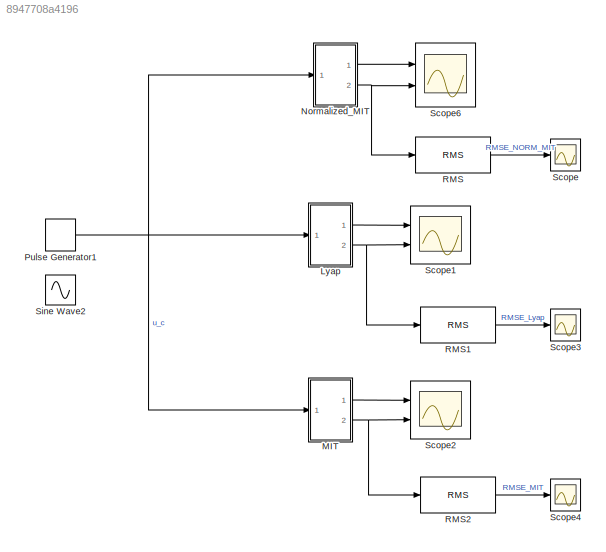
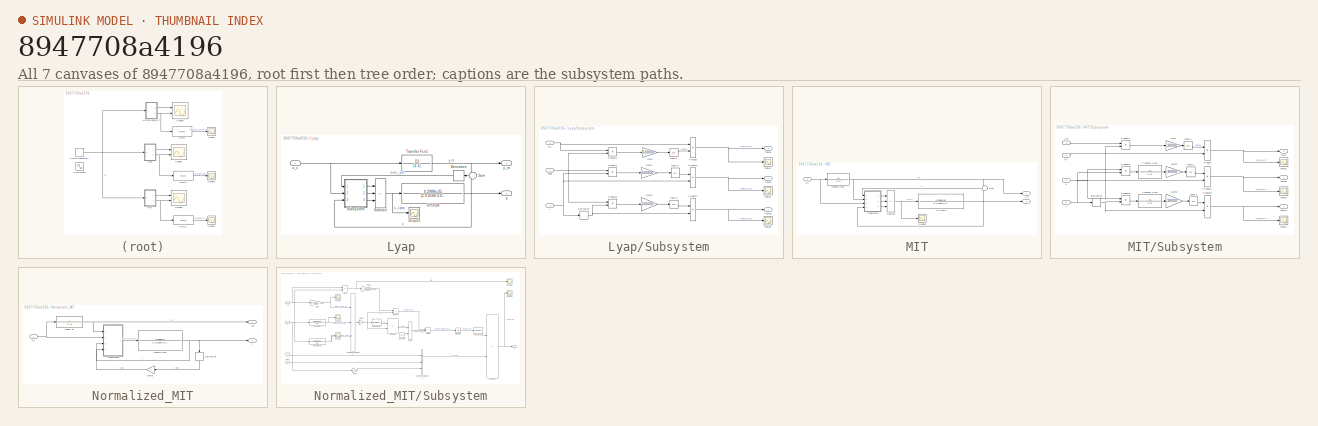
[diagram: thumbnail index - all 7 canvases of the model, root first then tree order]
MODEL slx_8947708a4196
KIND model
CONFIG AbsTol = auto
CONFIG EnableMultiTasking = off
CONFIG FixedStep = auto
CONFIG MaxStep = auto
CONFIG MinStep = auto
CONFIG RelTol = 1e-3
CONFIG SampleTimeConstraint = Unconstrained
CONFIG Solver = VariableStepAuto
CONFIG SolverName = VariableStepAuto
CONFIG StartTime = 0.0
CONFIG StopTime = 1000
BLOCK [SubSystem] Lyap
  Ports = [1, 2]
  RequestExecContextInheritance = off
BLOCK [Derivative] Lyap/Derivative
BLOCK [TransferFcn] Lyap/SYSTEM
  Denominator = [1 0.0166 0.00001]
  Numerator = 0.2988e-05
BLOCK [Scope] Lyap/Scope2
  Floating = off
  NumInputPorts = 1
  Ports = [1]
  ScopeSpecificationString = Simulink.scopes.TimeScopeBlockCfg('CurrentConfiguration', extmgr.ConfigurationSet(extmgr.Configuration('Core','General UI',true),extmgr.Configuration('Core','Source UI',true),extmgr.Configuration('Sources','WiredSimulink',true,'DataLoggingVariableName','ScopeData4'),extmgr.Configuration('Visuals','Time Domain',true,'SerializedDisplays',{struct('MinYLimReal','-299617.80443','MaxYLimReal','278203.56...<+1397ch>
BLOCK [SubSystem] Lyap/Subsystem
  Ports = [3, 3]
  RequestExecContextInheritance = off
BLOCK [Derivative] Lyap/Subsystem/Derivative
BLOCK [Gain] Lyap/Subsystem/Gain
  Gain = -500000
BLOCK [Gain] Lyap/Subsystem/Gain1
  Gain = 500000
BLOCK [Gain] Lyap/Subsystem/Gain2
  Gain = 500000
BLOCK [Product] Lyap/Subsystem/Product
  Ports = [2, 1]
BLOCK [Product] Lyap/Subsystem/Product1
  Ports = [2, 1]
BLOCK [Product] Lyap/Subsystem/Product2
  Ports = [2, 1]
BLOCK [Product] Lyap/Subsystem/Product3
  Ports = [2, 1]
BLOCK [Product] Lyap/Subsystem/Product4
  Ports = [2, 1]
BLOCK [Product] Lyap/Subsystem/Product5
  Ports = [2, 1]
BLOCK [Outport] Lyap/Subsystem/Theta1
  Port = 3
BLOCK [Outport] Lyap/Subsystem/Theta2
  Port = 2
BLOCK [Outport] Lyap/Subsystem/Theta3
BLOCK [Inport] Lyap/Subsystem/edot
BLOCK [Integrator] Lyap/Subsystem/theta 1
  Ports = [1, 1]
BLOCK [Integrator] Lyap/Subsystem/theta 2
  Ports = [1, 1]
BLOCK [Integrator] Lyap/Subsystem/theta 3
  Ports = [1, 1]
BLOCK [Scope] Lyap/Subsystem/theta1
  Floating = off
  NumInputPorts = 1
  Ports = [1]
  ScopeSpecificationString = Simulink.scopes.TimeScopeBlockCfg('CurrentConfiguration', extmgr.ConfigurationSet(extmgr.Configuration('Core','General UI',true),extmgr.Configuration('Core','Source UI',true),extmgr.Configuration('Sources','WiredSimulink',true,'DataLoggingVariableName','ScopeData2'),extmgr.Configuration('Visuals','Time Domain',true,'SerializedDisplays',{struct('MinYLimReal','-124045.69004','MaxYLimReal','277450.45...<+1460ch>
BLOCK [Scope] Lyap/Subsystem/theta2
  Floating = off
  NumInputPorts = 1
  Ports = [1]
  ScopeSpecificationString = Simulink.scopes.TimeScopeBlockCfg('CurrentConfiguration', extmgr.ConfigurationSet(extmgr.Configuration('Core','General UI',true),extmgr.Configuration('Core','Source UI',true),extmgr.Configuration('Sources','WiredSimulink',true,'DataLoggingVariableName','ScopeData4'),extmgr.Configuration('Visuals','Time Domain',true,'SerializedDisplays',{struct('MinYLimReal','-53452.32499','MaxYLimReal','250951.313...<+1451ch>
BLOCK [Scope] Lyap/Subsystem/theta3
  Floating = off
  NumInputPorts = 1
  Ports = [1]
  ScopeSpecificationString = Simulink.scopes.TimeScopeBlockCfg('CurrentConfiguration', extmgr.ConfigurationSet(extmgr.Configuration('Core','General UI',true),extmgr.Configuration('Core','Source UI',true),extmgr.Configuration('Sources','WiredSimulink',true,'DataLoggingVariableName','ScopeData5'),extmgr.Configuration('Visuals','Time Domain',true,'SerializedDisplays',{struct('MinYLimReal','-388321.94857','MaxYLimReal','462713.20...<+1455ch>
BLOCK [Inport] Lyap/Subsystem/u_c
  Port = 2
BLOCK [Inport] Lyap/Subsystem/y
  Port = 3
BLOCK [Sum] Lyap/Subtract
  IconShape = rectangular
  Inputs = --+
  Ports = [3, 1]
BLOCK [Sum] Lyap/Sum
  Inputs = -|+
  Ports = [2, 1]
BLOCK [TransferFcn] Lyap/Transfer Fcn1
BLOCK [Inport] Lyap/u_c
BLOCK [Outport] Lyap/y
  Port = 2
BLOCK [Outport] Lyap/y_m
BLOCK [SubSystem] MIT
  Ports = [1, 2]
  RequestExecContextInheritance = off
BLOCK [TransferFcn] MIT/SYSTEM
  Denominator = [1 0.0166 0.00001]
  Numerator = 0.2988e-05
BLOCK [Scope] MIT/Scope3
  Floating = off
  NumInputPorts = 1
  Ports = [1]
  ScopeSpecificationString = Simulink.scopes.TimeScopeBlockCfg('CurrentConfiguration', extmgr.ConfigurationSet(extmgr.Configuration('Core','General UI',true),extmgr.Configuration('Core','Source UI',true),extmgr.Configuration('Sources','WiredSimulink',true,'DataLoggingVariableName','ScopeData6'),extmgr.Configuration('Visuals','Time Domain',true,'SerializedDisplays',{struct('MinYLimReal','-2639063.16541','MaxYLimReal','2611815....<+1406ch>
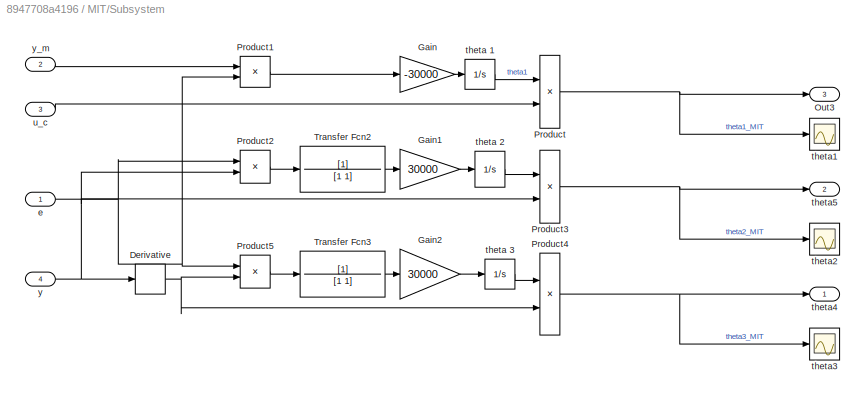
BLOCK [SubSystem] MIT/Subsystem
  Ports = [4, 3]
  RequestExecContextInheritance = off
BLOCK [Derivative] MIT/Subsystem/Derivative
BLOCK [Gain] MIT/Subsystem/Gain
  Gain = -30000
BLOCK [Gain] MIT/Subsystem/Gain1
  Gain = 30000
BLOCK [Gain] MIT/Subsystem/Gain2
  Gain = 30000
BLOCK [Outport] MIT/Subsystem/Out3
  Port = 3
BLOCK [Product] MIT/Subsystem/Product
  Ports = [2, 1]
BLOCK [Product] MIT/Subsystem/Product1
  Ports = [2, 1]
BLOCK [Product] MIT/Subsystem/Product2
  Ports = [2, 1]
BLOCK [Product] MIT/Subsystem/Product3
  Ports = [2, 1]
BLOCK [Product] MIT/Subsystem/Product4
  Ports = [2, 1]
BLOCK [Product] MIT/Subsystem/Product5
  Ports = [2, 1]
BLOCK [TransferFcn] MIT/Subsystem/Transfer Fcn2
BLOCK [TransferFcn] MIT/Subsystem/Transfer Fcn3
BLOCK [Inport] MIT/Subsystem/e
BLOCK [Integrator] MIT/Subsystem/theta 1
  Ports = [1, 1]
BLOCK [Integrator] MIT/Subsystem/theta 2
  Ports = [1, 1]
BLOCK [Integrator] MIT/Subsystem/theta 3
  Ports = [1, 1]
BLOCK [Scope] MIT/Subsystem/theta1
  Floating = off
  NumInputPorts = 1
  Ports = [1]
  ScopeSpecificationString = Simulink.scopes.TimeScopeBlockCfg('CurrentConfiguration', extmgr.ConfigurationSet(extmgr.Configuration('Core','General UI',true),extmgr.Configuration('Core','Source UI',true),extmgr.Configuration('Sources','WiredSimulink',true,'DataLoggingVariableName','ScopeData2'),extmgr.Configuration('Visuals','Time Domain',true,'SerializedDisplays',{struct('MinYLimReal','-3784.15867','MaxYLimReal','24561.62296...<+1443ch>
BLOCK [Scope] MIT/Subsystem/theta2
  Floating = off
  NumInputPorts = 1
  Ports = [1]
  ScopeSpecificationString = Simulink.scopes.TimeScopeBlockCfg('CurrentConfiguration', extmgr.ConfigurationSet(extmgr.Configuration('Core','General UI',true),extmgr.Configuration('Core','Source UI',true),extmgr.Configuration('Sources','WiredSimulink',true,'DataLoggingVariableName','ScopeData4'),extmgr.Configuration('Visuals','Time Domain',true,'SerializedDisplays',{struct('MinYLimReal','-4284.54058','MaxYLimReal','4024.49488'...<+1441ch>
BLOCK [Scope] MIT/Subsystem/theta3
  Floating = off
  NumInputPorts = 1
  Ports = [1]
  ScopeSpecificationString = Simulink.scopes.TimeScopeBlockCfg('CurrentConfiguration', extmgr.ConfigurationSet(extmgr.Configuration('Core','General UI',true),extmgr.Configuration('Core','Source UI',true),extmgr.Configuration('Sources','WiredSimulink',true,'DataLoggingVariableName','ScopeData5'),extmgr.Configuration('Visuals','Time Domain',true,'SerializedDisplays',{struct('MinYLimReal','-388321.94857','MaxYLimReal','462713.20...<+1455ch>
BLOCK [Outport] MIT/Subsystem/theta4
BLOCK [Outport] MIT/Subsystem/theta5
  Port = 2
BLOCK [Inport] MIT/Subsystem/u_c
  Port = 3
BLOCK [Inport] MIT/Subsystem/y
  Port = 4
BLOCK [Inport] MIT/Subsystem/y_m
  Port = 2
BLOCK [Sum] MIT/Subtract
  IconShape = rectangular
  Inputs = --+
  Ports = [3, 1]
BLOCK [Sum] MIT/Sum
  Inputs = -|+
  Ports = [2, 1]
BLOCK [TransferFcn] MIT/Transfer Fcn1
BLOCK [Inport] MIT/u_c
BLOCK [Outport] MIT/y
  Port = 2
BLOCK [Outport] MIT/y_m
BLOCK [SubSystem] Normalized_MIT
  Ports = [1, 2]
  RequestExecContextInheritance = off
BLOCK [Derivative] Normalized_MIT/Derivative
BLOCK [Gain] Normalized_MIT/Gain2
  Gain = -1
BLOCK [TransferFcn] Normalized_MIT/Model TF
  Numerator = 1
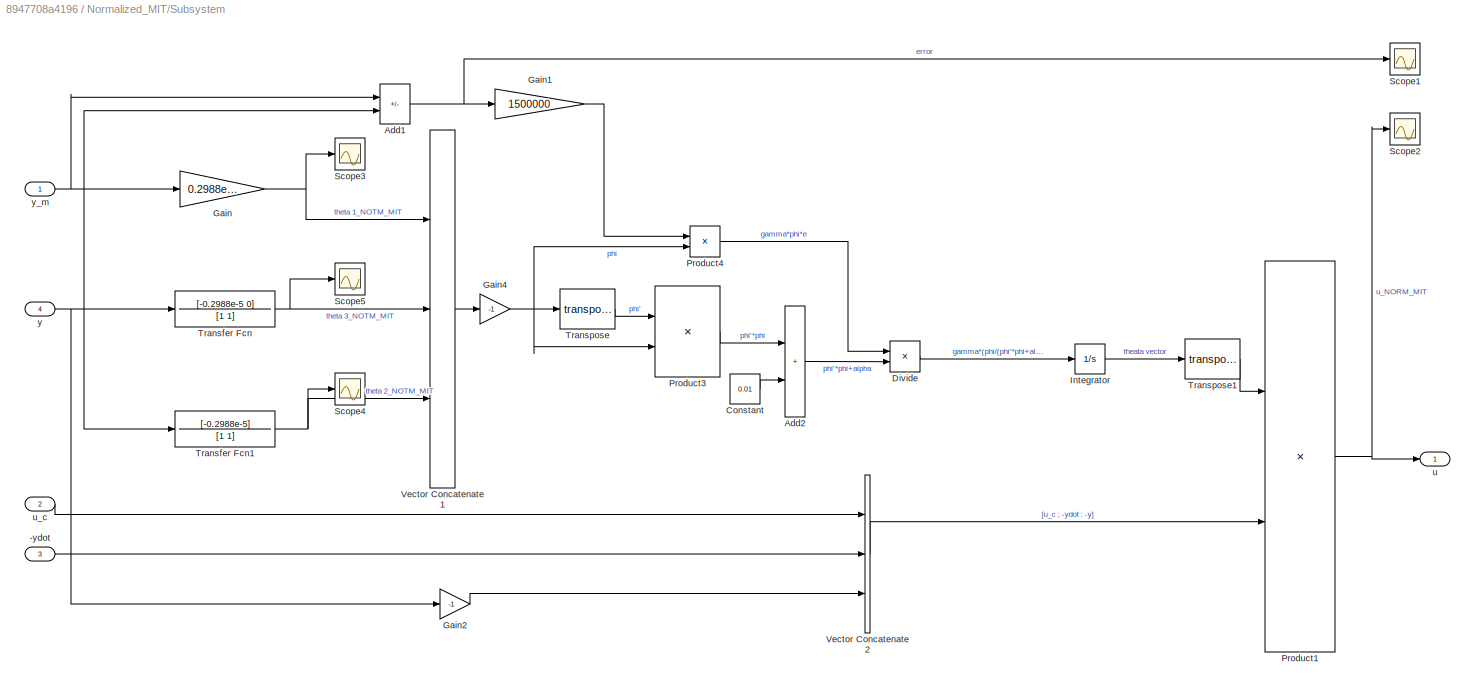
BLOCK [SubSystem] Normalized_MIT/Subsystem
  Ports = [4, 1]
  RequestExecContextInheritance = off
BLOCK [Inport] Normalized_MIT/Subsystem/-ydot
  Port = 3
BLOCK [Sum] Normalized_MIT/Subsystem/Add1
  IconShape = rectangular
  Inputs = -+
  Ports = [2, 1]
BLOCK [Sum] Normalized_MIT/Subsystem/Add2
  IconShape = rectangular
  Ports = [2, 1]
BLOCK [Constant] Normalized_MIT/Subsystem/Constant
  Value = 0.01
BLOCK [Product] Normalized_MIT/Subsystem/Divide
  Inputs = */
  Ports = [2, 1]
BLOCK [Gain] Normalized_MIT/Subsystem/Gain
  Gain = 0.2988e-5
BLOCK [Gain] Normalized_MIT/Subsystem/Gain1
  Gain = 1500000
BLOCK [Gain] Normalized_MIT/Subsystem/Gain2
  Gain = -1
BLOCK [Gain] Normalized_MIT/Subsystem/Gain4
  Gain = -1
BLOCK [Integrator] Normalized_MIT/Subsystem/Integrator
  Ports = [1, 1]
BLOCK [Product] Normalized_MIT/Subsystem/Product1
  Multiplication = Matrix(*)
  Ports = [2, 1]
BLOCK [Product] Normalized_MIT/Subsystem/Product3
  Multiplication = Matrix(*)
  Ports = [2, 1]
BLOCK [Product] Normalized_MIT/Subsystem/Product4
  Ports = [2, 1]
BLOCK [Scope] Normalized_MIT/Subsystem/Scope1
  Floating = off
  NumInputPorts = 1
  Ports = [1]
  ScopeSpecificationString = Simulink.scopes.TimeScopeBlockCfg('CurrentConfiguration', extmgr.ConfigurationSet(extmgr.Configuration('Core','General UI',true),extmgr.Configuration('Core','Source UI',true),extmgr.Configuration('Sources','WiredSimulink',true,'DataLoggingVariableName','ScopeData1','DataLoggingSaveFormat','StructureWithTime','DataLoggingLimitDataPoints',true,'DataLoggingDecimation','1','DataLoggingDecimateData',tr...<+1725ch>
BLOCK [Scope] Normalized_MIT/Subsystem/Scope2
  Floating = off
  NumInputPorts = 1
  Ports = [1]
  ScopeSpecificationString = Simulink.scopes.TimeScopeBlockCfg('CurrentConfiguration', extmgr.ConfigurationSet(extmgr.Configuration('Core','General UI',true),extmgr.Configuration('Core','Source UI',true),extmgr.Configuration('Sources','WiredSimulink',true,'DataLogging',true,'DataLoggingVariableName','ContSig','DataLoggingSaveFormat','StructureWithTime','DataLoggingDecimation','1','DataLoggingDecimateData',true),extmgr.Configu...<+938ch>
BLOCK [Scope] Normalized_MIT/Subsystem/Scope3
  Floating = off
  NumInputPorts = 1
  Ports = [1]
  ScopeSpecificationString = Simulink.scopes.TimeScopeBlockCfg('CurrentConfiguration', extmgr.ConfigurationSet(extmgr.Configuration('Core','General UI',true),extmgr.Configuration('Core','Source UI',true),extmgr.Configuration('Sources','WiredSimulink',true,'DataLogging',true,'DataLoggingVariableName','f','DataLoggingSaveFormat','StructureWithTime','DataLoggingDecimation','1','DataLoggingDecimateData',true),extmgr.Configuration...<+932ch>
BLOCK [Scope] Normalized_MIT/Subsystem/Scope4
  Floating = off
  NumInputPorts = 1
  Ports = [1]
  ScopeSpecificationString = Simulink.scopes.TimeScopeBlockCfg('CurrentConfiguration', extmgr.ConfigurationSet(extmgr.Configuration('Core','General UI',true),extmgr.Configuration('Core','Source UI',true),extmgr.Configuration('Sources','WiredSimulink',true,'DataLogging',true,'DataLoggingVariableName','q1','DataLoggingSaveFormat','StructureWithTime','DataLoggingDecimation','1','DataLoggingDecimateData',true),extmgr.Configuratio...<+933ch>
BLOCK [Scope] Normalized_MIT/Subsystem/Scope5
  Floating = off
  NumInputPorts = 1
  Ports = [1]
  ScopeSpecificationString = Simulink.scopes.TimeScopeBlockCfg('CurrentConfiguration', extmgr.ConfigurationSet(extmgr.Configuration('Core','General UI',true),extmgr.Configuration('Core','Source UI',true),extmgr.Configuration('Sources','WiredSimulink',true,'DataLogging',true,'DataLoggingVariableName','q0','DataLoggingSaveFormat','StructureWithTime','DataLoggingDecimation','1','DataLoggingDecimateData',true),extmgr.Configuratio...<+933ch>
BLOCK [TransferFcn] Normalized_MIT/Subsystem/Transfer Fcn
  Numerator = [-0.2988e-5 0]
BLOCK [TransferFcn] Normalized_MIT/Subsystem/Transfer Fcn1
  Numerator = [-0.2988e-5]
BLOCK [Math] Normalized_MIT/Subsystem/Transpose
  Operator = transpose
  Ports = [1, 1]
BLOCK [Math] Normalized_MIT/Subsystem/Transpose1
  Operator = transpose
  Ports = [1, 1]
BLOCK [Concatenate] Normalized_MIT/Subsystem/Vector Concatenate1
  NumInputs = 3
  Ports = [3, 1]
BLOCK [Concatenate] Normalized_MIT/Subsystem/Vector Concatenate2
  NumInputs = 3
  Ports = [3, 1]
BLOCK [Outport] Normalized_MIT/Subsystem/u
BLOCK [Inport] Normalized_MIT/Subsystem/u_c
  Port = 2
BLOCK [Inport] Normalized_MIT/Subsystem/y
  Port = 4
BLOCK [Inport] Normalized_MIT/Subsystem/y_m
BLOCK [TransferFcn] Normalized_MIT/Transfer Fcn2
  Denominator = [1 0.0166 0.00001]
  Numerator = 0.2988e-5
BLOCK [Inport] Normalized_MIT/u_c
BLOCK [Outport] Normalized_MIT/y
  Port = 2
BLOCK [Outport] Normalized_MIT/y_m
BLOCK [DiscretePulseGenerator] Pulse Generator1
  Amplitude = 10
  Period = 200
  Ports = [0, 1]
  PulseType = Time based
  PulseWidth = 50
BLOCK [Reference] RMS  REF=dspstat3/RMS
  Ports = [1, 1]
  SourceBlock = dspstat3/RMS
  SourceProductBaseCode = DS
  SourceType = RMS
  UserDataPersistent = on
BLOCK [Reference] RMS1  REF=dspstat3/RMS
  Ports = [1, 1]
  SourceBlock = dspstat3/RMS
  SourceProductBaseCode = DS
  SourceType = RMS
  UserDataPersistent = on
BLOCK [Reference] RMS2  REF=dspstat3/RMS
  Ports = [1, 1]
  SourceBlock = dspstat3/RMS
  SourceProductBaseCode = DS
  SourceType = RMS
  UserDataPersistent = on
BLOCK [Scope] Scope
  Floating = off
  NumInputPorts = 1
  Ports = [1]
  ScopeSpecificationString = Simulink.scopes.TimeScopeBlockCfg('CurrentConfiguration', extmgr.ConfigurationSet(extmgr.Configuration('Core','General UI',true),extmgr.Configuration('Core','Source UI',true),extmgr.Configuration('Sources','WiredSimulink',true,'DataLoggingVariableName','ScopeData1'),extmgr.Configuration('Visuals','Time Domain',true,'SerializedDisplays',{struct('MinYLimReal','-3.78893','MaxYLimReal','34.10037','YLa...<+1366ch>
BLOCK [Scope] Scope1
  Floating = off
  NumInputPorts = 2
  Ports = [2]
  ScopeSpecificationString = Simulink.scopes.TimeScopeBlockCfg('CurrentConfiguration', extmgr.ConfigurationSet(extmgr.Configuration('Core','General UI',true),extmgr.Configuration('Core','Source UI',true),extmgr.Configuration('Sources','WiredSimulink',true,'DataLoggingVariableName','ScopeData3'),extmgr.Configuration('Visuals','Time Domain',true,'SerializedDisplays',{struct('MinYLimReal','-12.49875','MaxYLimReal','12.49875','YL...<+1453ch>
BLOCK [Scope] Scope2
  Floating = off
  NumInputPorts = 2
  Ports = [2]
  ScopeSpecificationString = Simulink.scopes.TimeScopeBlockCfg('CurrentConfiguration', extmgr.ConfigurationSet(extmgr.Configuration('Core','General UI',true),extmgr.Configuration('Core','Source UI',true),extmgr.Configuration('Sources','WiredSimulink',true,'DataLoggingVariableName','ScopeData5'),extmgr.Configuration('Visuals','Time Domain',true,'SerializedDisplays',{struct('MinYLimReal','-379.82824','MaxYLimReal','434.86681','...<+1454ch>
BLOCK [Scope] Scope3
  Floating = off
  NumInputPorts = 1
  Ports = [1]
  ScopeSpecificationString = Simulink.scopes.TimeScopeBlockCfg('CurrentConfiguration', extmgr.ConfigurationSet(extmgr.Configuration('Core','General UI',true),extmgr.Configuration('Core','Source UI',true),extmgr.Configuration('Sources','WiredSimulink',true,'DataLoggingVariableName','ScopeData7'),extmgr.Configuration('Visuals','Time Domain',true,'SerializedDisplays',{struct('MinYLimReal','-3.78893','MaxYLimReal','34.10037','YLa...<+1366ch>
BLOCK [Scope] Scope4
  Floating = off
  NumInputPorts = 1
  Ports = [1]
  ScopeSpecificationString = Simulink.scopes.TimeScopeBlockCfg('CurrentConfiguration', extmgr.ConfigurationSet(extmgr.Configuration('Core','General UI',true),extmgr.Configuration('Core','Source UI',true),extmgr.Configuration('Sources','WiredSimulink',true,'DataLoggingVariableName','ScopeData8'),extmgr.Configuration('Visuals','Time Domain',true,'SerializedDisplays',{struct('MinYLimReal','-3.78893','MaxYLimReal','34.10037','YLa...<+1366ch>
BLOCK [Scope] Scope6
  Floating = off
  NumInputPorts = 2
  Ports = [2]
  ScopeSpecificationString = Simulink.scopes.TimeScopeBlockCfg('CurrentConfiguration', extmgr.ConfigurationSet(extmgr.Configuration('Core','General UI',true),extmgr.Configuration('Core','Source UI',true),extmgr.Configuration('Sources','WiredSimulink',true,'DataLoggingVariableName','ScopeData2'),extmgr.Configuration('Visuals','Time Domain',true,'SerializedDisplays',{struct('MinYLimReal','-31.43841','MaxYLimReal','167.96198','Y...<+1429ch>
BLOCK [Sin] Sine Wave2
  Amplitude = 10
  Frequency = 0.01
  Ports = [0, 1]
  SampleTime = 0
LINE Lyap/Derivative:1 -> Lyap/Subsystem:1
NET Lyap/SYSTEM:1 -> Lyap/Subsystem:3, Lyap/Sum:2, Lyap/y:1
NET Lyap/Subsystem/Derivative:1 -> Lyap/Subsystem/Product4:2, Lyap/Subsystem/Product5:2
LINE Lyap/Subsystem/Gain1:1 -> Lyap/Subsystem/theta 2:1
LINE Lyap/Subsystem/Gain2:1 -> Lyap/Subsystem/theta 3:1
LINE Lyap/Subsystem/Gain:1 -> Lyap/Subsystem/theta 1:1
LINE Lyap/Subsystem/Product1:1 -> Lyap/Subsystem/Gain:1
LINE Lyap/Subsystem/Product2:1 -> Lyap/Subsystem/Gain1:1
NET Lyap/Subsystem/Product3:1 -> Lyap/Subsystem/Theta2:1, Lyap/Subsystem/theta2:1
NET Lyap/Subsystem/Product4:1 -> Lyap/Subsystem/Theta3:1, Lyap/Subsystem/theta3:1
LINE Lyap/Subsystem/Product5:1 -> Lyap/Subsystem/Gain2:1
NET Lyap/Subsystem/Product:1 -> Lyap/Subsystem/Theta1:1, Lyap/Subsystem/theta1:1
NET Lyap/Subsystem/edot:1 -> Lyap/Subsystem/Product1:2, Lyap/Subsystem/Product2:1, Lyap/Subsystem/Product5:1
LINE Lyap/Subsystem/theta 1:1 -> Lyap/Subsystem/Product:2
LINE Lyap/Subsystem/theta 2:1 -> Lyap/Subsystem/Product3:1
LINE Lyap/Subsystem/theta 3:1 -> Lyap/Subsystem/Product4:1
NET Lyap/Subsystem/u_c:1 -> Lyap/Subsystem/Product1:1, Lyap/Subsystem/Product:1
NET Lyap/Subsystem/y:1 -> Lyap/Subsystem/Derivative:1, Lyap/Subsystem/Product2:2, Lyap/Subsystem/Product3:2
LINE Lyap/Subsystem:1 -> Lyap/Subtract:1
LINE Lyap/Subsystem:2 -> Lyap/Subtract:2
LINE Lyap/Subsystem:3 -> Lyap/Subtract:3
NET Lyap/Subtract:1 -> Lyap/SYSTEM:1, Lyap/Scope2:1
LINE Lyap/Sum:1 -> Lyap/Derivative:1
NET Lyap/Transfer Fcn1:1 -> Lyap/Sum:1, Lyap/y_m:1
NET Lyap/u_c:1 -> Lyap/Subsystem:2, Lyap/Transfer Fcn1:1
LINE Lyap:1 -> Scope1:1
NET Lyap:2 -> RMS1:1, Scope1:2
NET MIT/SYSTEM:1 -> MIT/Subsystem:4, MIT/Sum:2, MIT/y:1
NET MIT/Subsystem/Derivative:1 -> MIT/Subsystem/Product4:2, MIT/Subsystem/Product5:2
LINE MIT/Subsystem/Gain1:1 -> MIT/Subsystem/theta 2:1
LINE MIT/Subsystem/Gain2:1 -> MIT/Subsystem/theta 3:1
LINE MIT/Subsystem/Gain:1 -> MIT/Subsystem/theta 1:1
LINE MIT/Subsystem/Product1:1 -> MIT/Subsystem/Gain:1
LINE MIT/Subsystem/Product2:1 -> MIT/Subsystem/Transfer Fcn2:1
NET MIT/Subsystem/Product3:1 -> MIT/Subsystem/theta2:1, MIT/Subsystem/theta5:1
NET MIT/Subsystem/Product4:1 -> MIT/Subsystem/theta3:1, MIT/Subsystem/theta4:1
LINE MIT/Subsystem/Product5:1 -> MIT/Subsystem/Transfer Fcn3:1
NET MIT/Subsystem/Product:1 -> MIT/Subsystem/Out3:1, MIT/Subsystem/theta1:1
LINE MIT/Subsystem/Transfer Fcn2:1 -> MIT/Subsystem/Gain1:1
LINE MIT/Subsystem/Transfer Fcn3:1 -> MIT/Subsystem/Gain2:1
NET MIT/Subsystem/e:1 -> MIT/Subsystem/Product1:2, MIT/Subsystem/Product2:1, MIT/Subsystem/Product5:1
LINE MIT/Subsystem/theta 1:1 -> MIT/Subsystem/Product:1
LINE MIT/Subsystem/theta 2:1 -> MIT/Subsystem/Product3:1
LINE MIT/Subsystem/theta 3:1 -> MIT/Subsystem/Product4:1
LINE MIT/Subsystem/u_c:1 -> MIT/Subsystem/Product:2
NET MIT/Subsystem/y:1 -> MIT/Subsystem/Derivative:1, MIT/Subsystem/Product2:2, MIT/Subsystem/Product3:2
LINE MIT/Subsystem/y_m:1 -> MIT/Subsystem/Product1:1
LINE MIT/Subsystem:1 -> MIT/Subtract:1
LINE MIT/Subsystem:2 -> MIT/Subtract:2
LINE MIT/Subsystem:3 -> MIT/Subtract:3
NET MIT/Subtract:1 -> MIT/SYSTEM:1, MIT/Scope3:1
LINE MIT/Sum:1 -> MIT/Subsystem:1
NET MIT/Transfer Fcn1:1 -> MIT/Subsystem:2, MIT/Sum:1, MIT/y_m:1
NET MIT/u_c:1 -> MIT/Subsystem:3, MIT/Transfer Fcn1:1
LINE MIT:1 -> Scope2:1
NET MIT:2 -> RMS2:1, Scope2:2
LINE Normalized_MIT/Derivative:1 -> Normalized_MIT/Gain2:1
LINE Normalized_MIT/Gain2:1 -> Normalized_MIT/Subsystem:3
NET Normalized_MIT/Model TF:1 -> Normalized_MIT/Subsystem:1, Normalized_MIT/y_m:1
LINE Normalized_MIT/Subsystem/-ydot:1 -> Normalized_MIT/Subsystem/Vector Concatenate2:2
NET Normalized_MIT/Subsystem/Add1:1 -> Normalized_MIT/Subsystem/Gain1:1, Normalized_MIT/Subsystem/Scope1:1
LINE Normalized_MIT/Subsystem/Add2:1 -> Normalized_MIT/Subsystem/Divide:2
LINE Normalized_MIT/Subsystem/Constant:1 -> Normalized_MIT/Subsystem/Add2:2
LINE Normalized_MIT/Subsystem/Divide:1 -> Normalized_MIT/Subsystem/Integrator:1
LINE Normalized_MIT/Subsystem/Gain1:1 -> Normalized_MIT/Subsystem/Product4:1
LINE Normalized_MIT/Subsystem/Gain2:1 -> Normalized_MIT/Subsystem/Vector Concatenate2:3
NET Normalized_MIT/Subsystem/Gain4:1 -> Normalized_MIT/Subsystem/Product3:2, Normalized_MIT/Subsystem/Product4:2, Normalized_MIT/Subsystem/Transpose:1
NET Normalized_MIT/Subsystem/Gain:1 -> Normalized_MIT/Subsystem/Scope3:1, Normalized_MIT/Subsystem/Vector Concatenate1:1
LINE Normalized_MIT/Subsystem/Integrator:1 -> Normalized_MIT/Subsystem/Transpose1:1
NET Normalized_MIT/Subsystem/Product1:1 -> Normalized_MIT/Subsystem/Scope2:1, Normalized_MIT/Subsystem/u:1
LINE Normalized_MIT/Subsystem/Product3:1 -> Normalized_MIT/Subsystem/Add2:1
LINE Normalized_MIT/Subsystem/Product4:1 -> Normalized_MIT/Subsystem/Divide:1
NET Normalized_MIT/Subsystem/Transfer Fcn1:1 -> Normalized_MIT/Subsystem/Scope4:1, Normalized_MIT/Subsystem/Vector Concatenate1:3
NET Normalized_MIT/Subsystem/Transfer Fcn:1 -> Normalized_MIT/Subsystem/Scope5:1, Normalized_MIT/Subsystem/Vector Concatenate1:2
LINE Normalized_MIT/Subsystem/Transpose1:1 -> Normalized_MIT/Subsystem/Product1:1
LINE Normalized_MIT/Subsystem/Transpose:1 -> Normalized_MIT/Subsystem/Product3:1
LINE Normalized_MIT/Subsystem/Vector Concatenate1:1 -> Normalized_MIT/Subsystem/Gain4:1
LINE Normalized_MIT/Subsystem/Vector Concatenate2:1 -> Normalized_MIT/Subsystem/Product1:2
LINE Normalized_MIT/Subsystem/u_c:1 -> Normalized_MIT/Subsystem/Vector Concatenate2:1
NET Normalized_MIT/Subsystem/y:1 -> Normalized_MIT/Subsystem/Add1:2, Normalized_MIT/Subsystem/Gain2:1, Normalized_MIT/Subsystem/Transfer Fcn1:1, Normalized_MIT/Subsystem/Transfer Fcn:1
NET Normalized_MIT/Subsystem/y_m:1 -> Normalized_MIT/Subsystem/Add1:1, Normalized_MIT/Subsystem/Gain:1
LINE Normalized_MIT/Subsystem:1 -> Normalized_MIT/Transfer Fcn2:1
NET Normalized_MIT/Transfer Fcn2:1 -> Normalized_MIT/Derivative:1, Normalized_MIT/Subsystem:4, Normalized_MIT/y:1
NET Normalized_MIT/u_c:1 -> Normalized_MIT/Model TF:1, Normalized_MIT/Subsystem:2
LINE Normalized_MIT:1 -> Scope6:1
NET Normalized_MIT:2 -> RMS:1, Scope6:2
NET Pulse Generator1:1 -> Lyap:1, MIT:1, Normalized_MIT:1
LINE RMS1:1 -> Scope3:1
LINE RMS2:1 -> Scope4:1
LINE RMS:1 -> Scope:1
note: NET lines group one-source signal fan-out (src -> all destinations, sorted); 1:1 wires keep LINE
